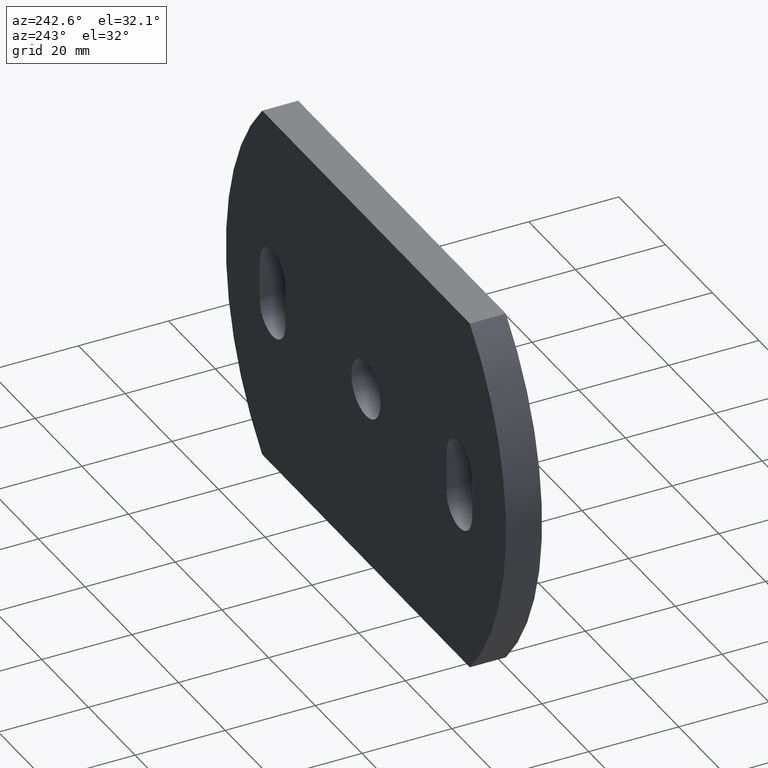
[diagram: clean part render]
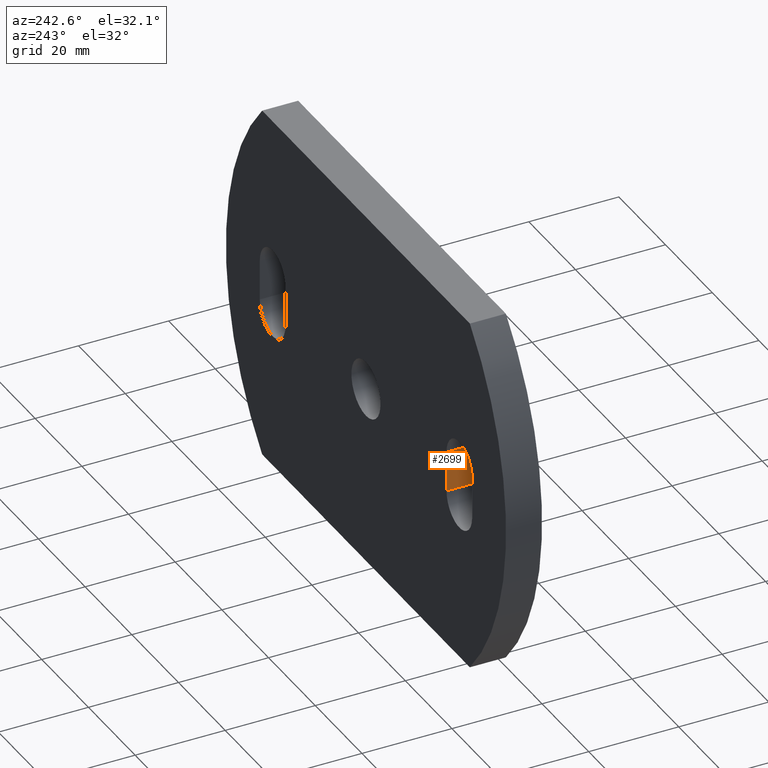
[diagram: same view with one face highlighted and labeled with its STEP entity id]
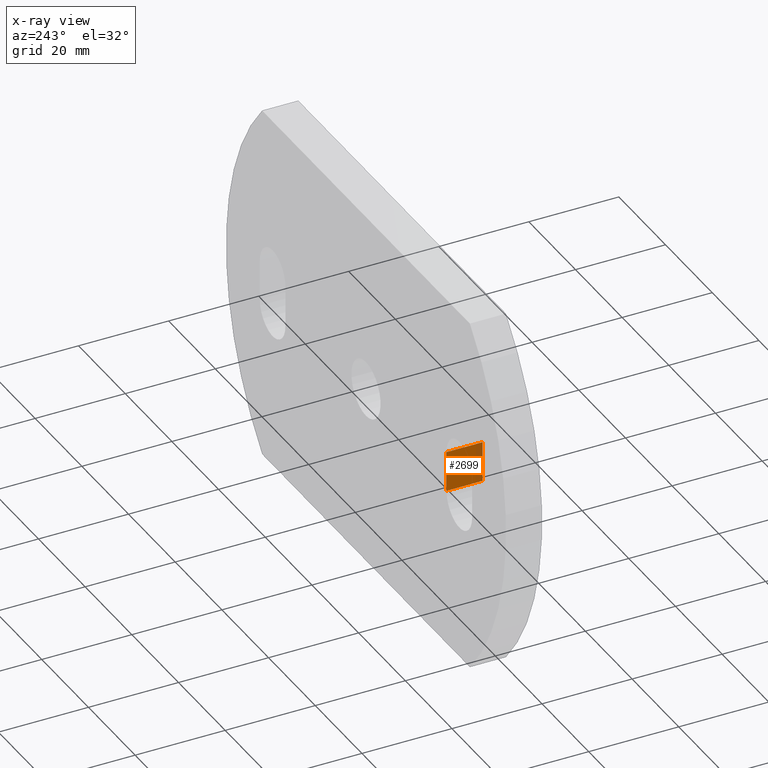
[diagram: x-ray of the same camera — body ghosted, the highlighted face saturated]
A machine part, auxiliary view. The second image highlights one B-rep face of the part: STEP entity #2699.
The next image is the same camera in x-ray: the body ghosted, the highlighted face saturated — about 19% of this face is hidden behind the body in this view.
In plain terms, the highlighted planar face has unit normal (1, 0, -0).
Its self-contained STEP definition (entity closure, byte-faithful):
#493 = VECTOR ( 'NONE', #8169, 1000.000000000000000 ) ;
#800 = DIRECTION ( 'NONE',  ( -0.0000000000000000000, 1.000000000000000000, -0.0000000000000000000 ) ) ;
#827 = VECTOR ( 'NONE', #8088, 1000.000000000000000 ) ;
#1073 = EDGE_LOOP ( 'NONE', ( #1252, #6026, #6762, #5058 ) ) ;
#1252 = ORIENTED_EDGE ( 'NONE', *, *, #1968, .T. ) ;
#1584 = VERTEX_POINT ( 'NONE', #5932 ) ;
#1864 = LINE ( 'NONE', #5945, #8694 ) ;
#1968 = EDGE_CURVE ( 'NONE', #1584, #7723, #1864, .T. ) ;
#2699 = ADVANCED_FACE ( 'NONE', ( #8294 ), #8714, .F. ) ;
#2878 = EDGE_CURVE ( 'NONE', #4356, #1584, #9874, .T. ) ;
#3642 = EDGE_CURVE ( 'NONE', #4356, #6168, #10680, .T. ) ;
#4356 = VERTEX_POINT ( 'NONE', #9524 ) ;
#4485 = DIRECTION ( 'NONE',  ( 1.000000000000000000, 0.0000000000000000000, -0.0000000000000000000 ) ) ;
#4593 = CARTESIAN_POINT ( 'NONE',  ( -34.50000000000000000, 0.0000000000000000000, -4.499999999999987600 ) ) ;
#4844 = LINE ( 'NONE', #7299, #493 ) ;
#5058 = ORIENTED_EDGE ( 'NONE', *, *, #2878, .T. ) ;
#5559 = CARTESIAN_POINT ( 'NONE',  ( -34.50000000000000000, 0.0000000000000000000, -4.499999999999987600 ) ) ;
#5932 = CARTESIAN_POINT ( 'NONE',  ( -34.50000000000000000, 8.000000000000000000, 4.499999999999987600 ) ) ;
#5945 = CARTESIAN_POINT ( 'NONE',  ( -34.50000000000000000, 8.000000000000000000, -4.499999999999987600 ) ) ;
#6026 = ORIENTED_EDGE ( 'NONE', *, *, #7556, .F. ) ;
#6168 = VERTEX_POINT ( 'NONE', #10424 ) ;
#6324 = VECTOR ( 'NONE', #800, 1000.000000000000000 ) ;
#6762 = ORIENTED_EDGE ( 'NONE', *, *, #3642, .F. ) ;
#7299 = CARTESIAN_POINT ( 'NONE',  ( -34.50000000000000000, 0.0000000000000000000, -4.499999999999987600 ) ) ;
#7556 = EDGE_CURVE ( 'NONE', #6168, #7723, #4844, .T. ) ;
#7723 = VERTEX_POINT ( 'NONE', #10015 ) ;
#8088 = DIRECTION ( 'NONE',  ( -0.0000000000000000000, -0.0000000000000000000, -1.000000000000000000 ) ) ;
#8169 = DIRECTION ( 'NONE',  ( -0.0000000000000000000, 1.000000000000000000, -0.0000000000000000000 ) ) ;
#8294 = FACE_OUTER_BOUND ( 'NONE', #1073, .T. ) ;
#8329 = CARTESIAN_POINT ( 'NONE',  ( -34.50000000000000000, 0.0000000000000000000, 4.499999999999987600 ) ) ;
#8420 = AXIS2_PLACEMENT_3D ( 'NONE', #4593, #4485, #10467 ) ;
#8694 = VECTOR ( 'NONE', #10295, 1000.000000000000000 ) ;
#8714 = PLANE ( 'NONE',  #8420 ) ;
#9524 = CARTESIAN_POINT ( 'NONE',  ( -34.50000000000000000, 0.0000000000000000000, 4.499999999999987600 ) ) ;
#9874 = LINE ( 'NONE', #8329, #6324 ) ;
#10015 = CARTESIAN_POINT ( 'NONE',  ( -34.50000000000000000, 8.000000000000000000, -4.499999999999987600 ) ) ;
#10295 = DIRECTION ( 'NONE',  ( -0.0000000000000000000, -0.0000000000000000000, -1.000000000000000000 ) ) ;
#10424 = CARTESIAN_POINT ( 'NONE',  ( -34.50000000000000000, 0.0000000000000000000, -4.499999999999987600 ) ) ;
#10467 = DIRECTION ( 'NONE',  ( -0.0000000000000000000, 0.0000000000000000000, -1.000000000000000000 ) ) ;
#10680 = LINE ( 'NONE', #5559, #827 ) ;